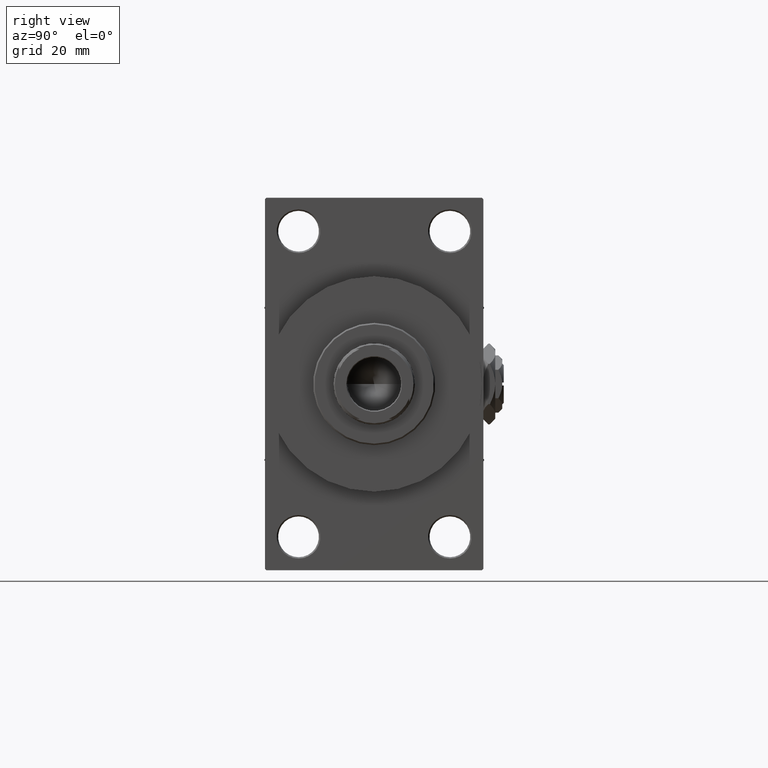
[diagram: clean part render]
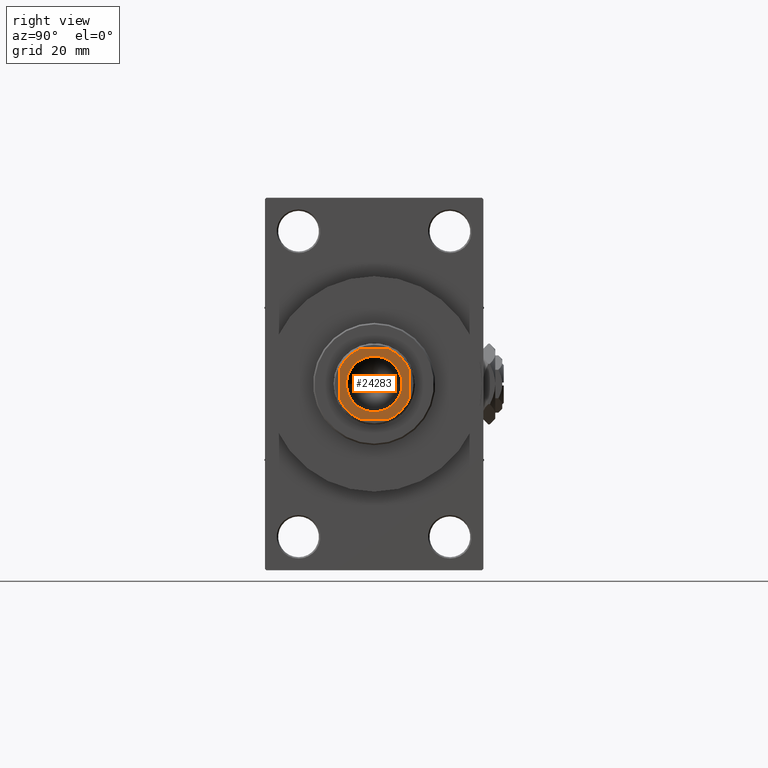
[diagram: same view with one face highlighted and labeled with its STEP entity id]
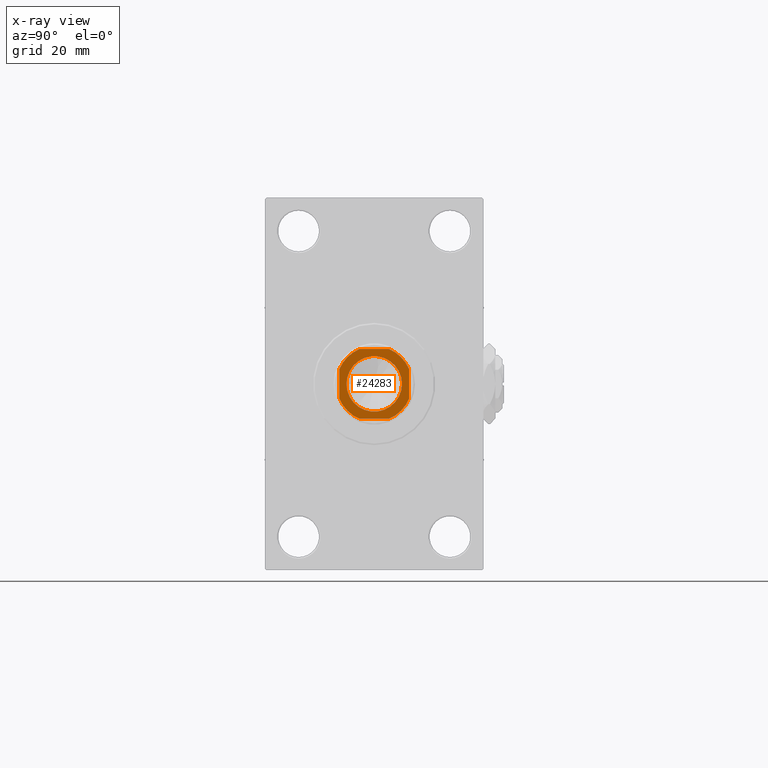
[diagram: x-ray of the same camera — body ghosted, the highlighted face saturated]
A machine part, right view. The second image highlights one B-rep face of the part: STEP entity #24283.
The next image is the same camera in x-ray: the body ghosted, the highlighted face saturated — about 0% of this face is hidden behind the body in this view.
In plain terms, the highlighted planar face has unit normal (1, 0, 0).
Its self-contained STEP definition (entity closure, byte-faithful):
#219 = CARTESIAN_POINT ( 'NONE',  ( 4.999999999999626077, 11.99999999999999645, 147.0000000000000284 ) ) ;
#1046 = EDGE_CURVE ( 'NONE', #30621, #3904, #41467, .T. ) ;
#1490 = VECTOR ( 'NONE', #16134, 1000.000000000000000 ) ;
#1782 = CARTESIAN_POINT ( 'NONE',  ( -12.00000000000000000, -4.999999999999625189, 147.0000000000000284 ) ) ;
#2477 = CARTESIAN_POINT ( 'NONE',  ( -12.00000000000000000, 11.99999999999999645, 147.0000000000000284 ) ) ;
#3475 = VERTEX_POINT ( 'NONE', #41912 ) ;
#3540 = VERTEX_POINT ( 'NONE', #1782 ) ;
#3904 = VERTEX_POINT ( 'NONE', #17866 ) ;
#4235 = FACE_BOUND ( 'NONE', #26867, .T. ) ;
#4475 = CARTESIAN_POINT ( 'NONE',  ( 0.000000000000000000, 0.000000000000000000, 147.0000000000000284 ) ) ;
#5378 = CARTESIAN_POINT ( 'NONE',  ( -12.00000000000000000, 11.99999999999999645, 147.0000000000000284 ) ) ;
#6239 = DIRECTION ( 'NONE',  ( 1.000000000000000000, 0.000000000000000000, 0.000000000000000000 ) ) ;
#6810 = ORIENTED_EDGE ( 'NONE', *, *, #38663, .T. ) ;
#6828 = CARTESIAN_POINT ( 'NONE',  ( 0.000000000000000000, 0.000000000000000000, 147.0000000000000284 ) ) ;
#7368 = EDGE_LOOP ( 'NONE', ( #16495, #10288, #20254, #26080, #21885, #33984, #31479, #18293 ) ) ;
#7809 = DIRECTION ( 'NONE',  ( 1.000000000000000000, 0.000000000000000000, 0.000000000000000000 ) ) ;
#7819 = VERTEX_POINT ( 'NONE', #15538 ) ;
#8218 = DIRECTION ( 'NONE',  ( 0.000000000000000000, -0.000000000000000000, -1.000000000000000000 ) ) ;
#8521 = ORIENTED_EDGE ( 'NONE', *, *, #14384, .T. ) ;
#9377 = LINE ( 'NONE', #5378, #1490 ) ;
#9895 = CARTESIAN_POINT ( 'NONE',  ( 0.000000000000000000, 0.000000000000000000, 147.0000000000000284 ) ) ;
#10288 = ORIENTED_EDGE ( 'NONE', *, *, #24743, .T. ) ;
#10882 = VERTEX_POINT ( 'NONE', #219 ) ;
#11063 = CIRCLE ( 'NONE', #30972, 12.99999999999985434 ) ;
#11544 = DIRECTION ( 'NONE',  ( -0.000000000000000000, 0.000000000000000000, 1.000000000000000000 ) ) ;
#11810 = CIRCLE ( 'NONE', #30108, 9.550000000000002487 ) ;
#11988 = CIRCLE ( 'NONE', #41437, 12.99999999999986677 ) ;
#12281 = VERTEX_POINT ( 'NONE', #28847 ) ;
#13496 = AXIS2_PLACEMENT_3D ( 'NONE', #41945, #11544, #7809 ) ;
#13892 = CIRCLE ( 'NONE', #32225, 9.550000000000002487 ) ;
#14384 = EDGE_CURVE ( 'NONE', #7819, #22135, #13892, .T. ) ;
#14935 = VECTOR ( 'NONE', #6239, 1000.000000000000000 ) ;
#14990 = DIRECTION ( 'NONE',  ( 1.000000000000000000, 0.000000000000000000, 0.000000000000000000 ) ) ;
#15538 = CARTESIAN_POINT ( 'NONE',  ( -9.550000000000002487, 1.169537693185722558E-15, 147.0000000000000284 ) ) ;
#16134 = DIRECTION ( 'NONE',  ( 7.228014483236695816E-17, -1.000000000000000000, 0.000000000000000000 ) ) ;
#16495 = ORIENTED_EDGE ( 'NONE', *, *, #1046, .T. ) ;
#17291 = VECTOR ( 'NONE', #29402, 1000.000000000000000 ) ;
#17866 = CARTESIAN_POINT ( 'NONE',  ( 11.99999999999999822, 4.999999999999622524, 147.0000000000000284 ) ) ;
#18201 = LINE ( 'NONE', #26155, #14935 ) ;
#18293 = ORIENTED_EDGE ( 'NONE', *, *, #44470, .T. ) ;
#18601 = DIRECTION ( 'NONE',  ( 1.000000000000000000, 0.000000000000000000, 0.000000000000000000 ) ) ;
#19045 = DIRECTION ( 'NONE',  ( -0.000000000000000000, 0.000000000000000000, 1.000000000000000000 ) ) ;
#19471 = FACE_OUTER_BOUND ( 'NONE', #7368, .T. ) ;
#19897 = EDGE_CURVE ( 'NONE', #10882, #34909, #25658, .T. ) ;
#20254 = ORIENTED_EDGE ( 'NONE', *, *, #19897, .T. ) ;
#21885 = ORIENTED_EDGE ( 'NONE', *, *, #24084, .T. ) ;
#22135 = VERTEX_POINT ( 'NONE', #37834 ) ;
#22540 = DIRECTION ( 'NONE',  ( -2.891205793294678326E-16, 1.000000000000000000, -0.000000000000000000 ) ) ;
#22826 = DIRECTION ( 'NONE',  ( 1.000000000000000000, 0.000000000000000000, 0.000000000000000000 ) ) ;
#23432 = DIRECTION ( 'NONE',  ( 1.000000000000000000, 0.000000000000000000, 0.000000000000000000 ) ) ;
#24084 = EDGE_CURVE ( 'NONE', #12281, #3540, #9377, .T. ) ;
#24197 = DIRECTION ( 'NONE',  ( -0.000000000000000000, 0.000000000000000000, 1.000000000000000000 ) ) ;
#24283 = ADVANCED_FACE ( 'NONE', ( #4235, #19471 ), #38651, .T. ) ;
#24743 = EDGE_CURVE ( 'NONE', #3904, #10882, #11063, .T. ) ;
#24937 = DIRECTION ( 'NONE',  ( 1.000000000000000000, 0.000000000000000000, 0.000000000000000000 ) ) ;
#25254 = EDGE_CURVE ( 'NONE', #25455, #3475, #18201, .T. ) ;
#25455 = VERTEX_POINT ( 'NONE', #34625 ) ;
#25658 = LINE ( 'NONE', #2477, #17291 ) ;
#25956 = DIRECTION ( 'NONE',  ( -0.000000000000000000, 0.000000000000000000, 1.000000000000000000 ) ) ;
#26050 = AXIS2_PLACEMENT_3D ( 'NONE', #45726, #30807, #22826 ) ;
#26080 = ORIENTED_EDGE ( 'NONE', *, *, #41310, .T. ) ;
#26155 = CARTESIAN_POINT ( 'NONE',  ( -11.99999999999999822, -12.00000000000000355, 147.0000000000000284 ) ) ;
#26867 = EDGE_LOOP ( 'NONE', ( #6810, #8521 ) ) ;
#28557 = CARTESIAN_POINT ( 'NONE',  ( 0.000000000000000000, 0.000000000000000000, 147.0000000000000284 ) ) ;
#28847 = CARTESIAN_POINT ( 'NONE',  ( -12.00000000000000000, 4.999999999999727329, 147.0000000000000284 ) ) ;
#29402 = DIRECTION ( 'NONE',  ( -1.000000000000000000, -0.000000000000000000, -0.000000000000000000 ) ) ;
#30108 = AXIS2_PLACEMENT_3D ( 'NONE', #28557, #8218, #23432 ) ;
#30621 = VERTEX_POINT ( 'NONE', #35228 ) ;
#30807 = DIRECTION ( 'NONE',  ( -0.000000000000000000, 0.000000000000000000, 1.000000000000000000 ) ) ;
#30972 = AXIS2_PLACEMENT_3D ( 'NONE', #6828, #19045, #33530 ) ;
#31479 = ORIENTED_EDGE ( 'NONE', *, *, #25254, .T. ) ;
#32225 = AXIS2_PLACEMENT_3D ( 'NONE', #9895, #32841, #18601 ) ;
#32841 = DIRECTION ( 'NONE',  ( 0.000000000000000000, -0.000000000000000000, -1.000000000000000000 ) ) ;
#33261 = CIRCLE ( 'NONE', #26050, 12.99999999999985612 ) ;
#33530 = DIRECTION ( 'NONE',  ( 1.000000000000000000, 0.000000000000000000, 0.000000000000000000 ) ) ;
#33984 = ORIENTED_EDGE ( 'NONE', *, *, #37631, .T. ) ;
#34625 = CARTESIAN_POINT ( 'NONE',  ( -4.999999999999616307, -12.00000000000000355, 147.0000000000000284 ) ) ;
#34909 = VERTEX_POINT ( 'NONE', #39491 ) ;
#34982 = CIRCLE ( 'NONE', #13496, 12.99999999999989519 ) ;
#35228 = CARTESIAN_POINT ( 'NONE',  ( 12.00000000000000178, -4.999999999999650946, 147.0000000000000284 ) ) ;
#35832 = VECTOR ( 'NONE', #22540, 1000.000000000000000 ) ;
#37631 = EDGE_CURVE ( 'NONE', #3540, #25455, #33261, .T. ) ;
#37834 = CARTESIAN_POINT ( 'NONE',  ( 9.550000000000002487, 0.000000000000000000, 147.0000000000000284 ) ) ;
#38651 = PLANE ( 'NONE',  #45155 ) ;
#38663 = EDGE_CURVE ( 'NONE', #22135, #7819, #11810, .T. ) ;
#39491 = CARTESIAN_POINT ( 'NONE',  ( -4.999999999999735323, 11.99999999999999645, 147.0000000000000284 ) ) ;
#41149 = CARTESIAN_POINT ( 'NONE',  ( 0.000000000000000000, 0.000000000000000000, 147.0000000000000284 ) ) ;
#41215 = CARTESIAN_POINT ( 'NONE',  ( 11.99999999999999645, 11.99999999999999645, 147.0000000000000284 ) ) ;
#41310 = EDGE_CURVE ( 'NONE', #34909, #12281, #34982, .T. ) ;
#41437 = AXIS2_PLACEMENT_3D ( 'NONE', #41149, #25956, #14990 ) ;
#41467 = LINE ( 'NONE', #41215, #35832 ) ;
#41912 = CARTESIAN_POINT ( 'NONE',  ( 4.999999999999646505, -12.00000000000000355, 147.0000000000000284 ) ) ;
#41945 = CARTESIAN_POINT ( 'NONE',  ( 0.000000000000000000, 0.000000000000000000, 147.0000000000000284 ) ) ;
#44470 = EDGE_CURVE ( 'NONE', #3475, #30621, #11988, .T. ) ;
#45155 = AXIS2_PLACEMENT_3D ( 'NONE', #4475, #24197, #24937 ) ;
#45726 = CARTESIAN_POINT ( 'NONE',  ( 0.000000000000000000, 0.000000000000000000, 147.0000000000000284 ) ) ;